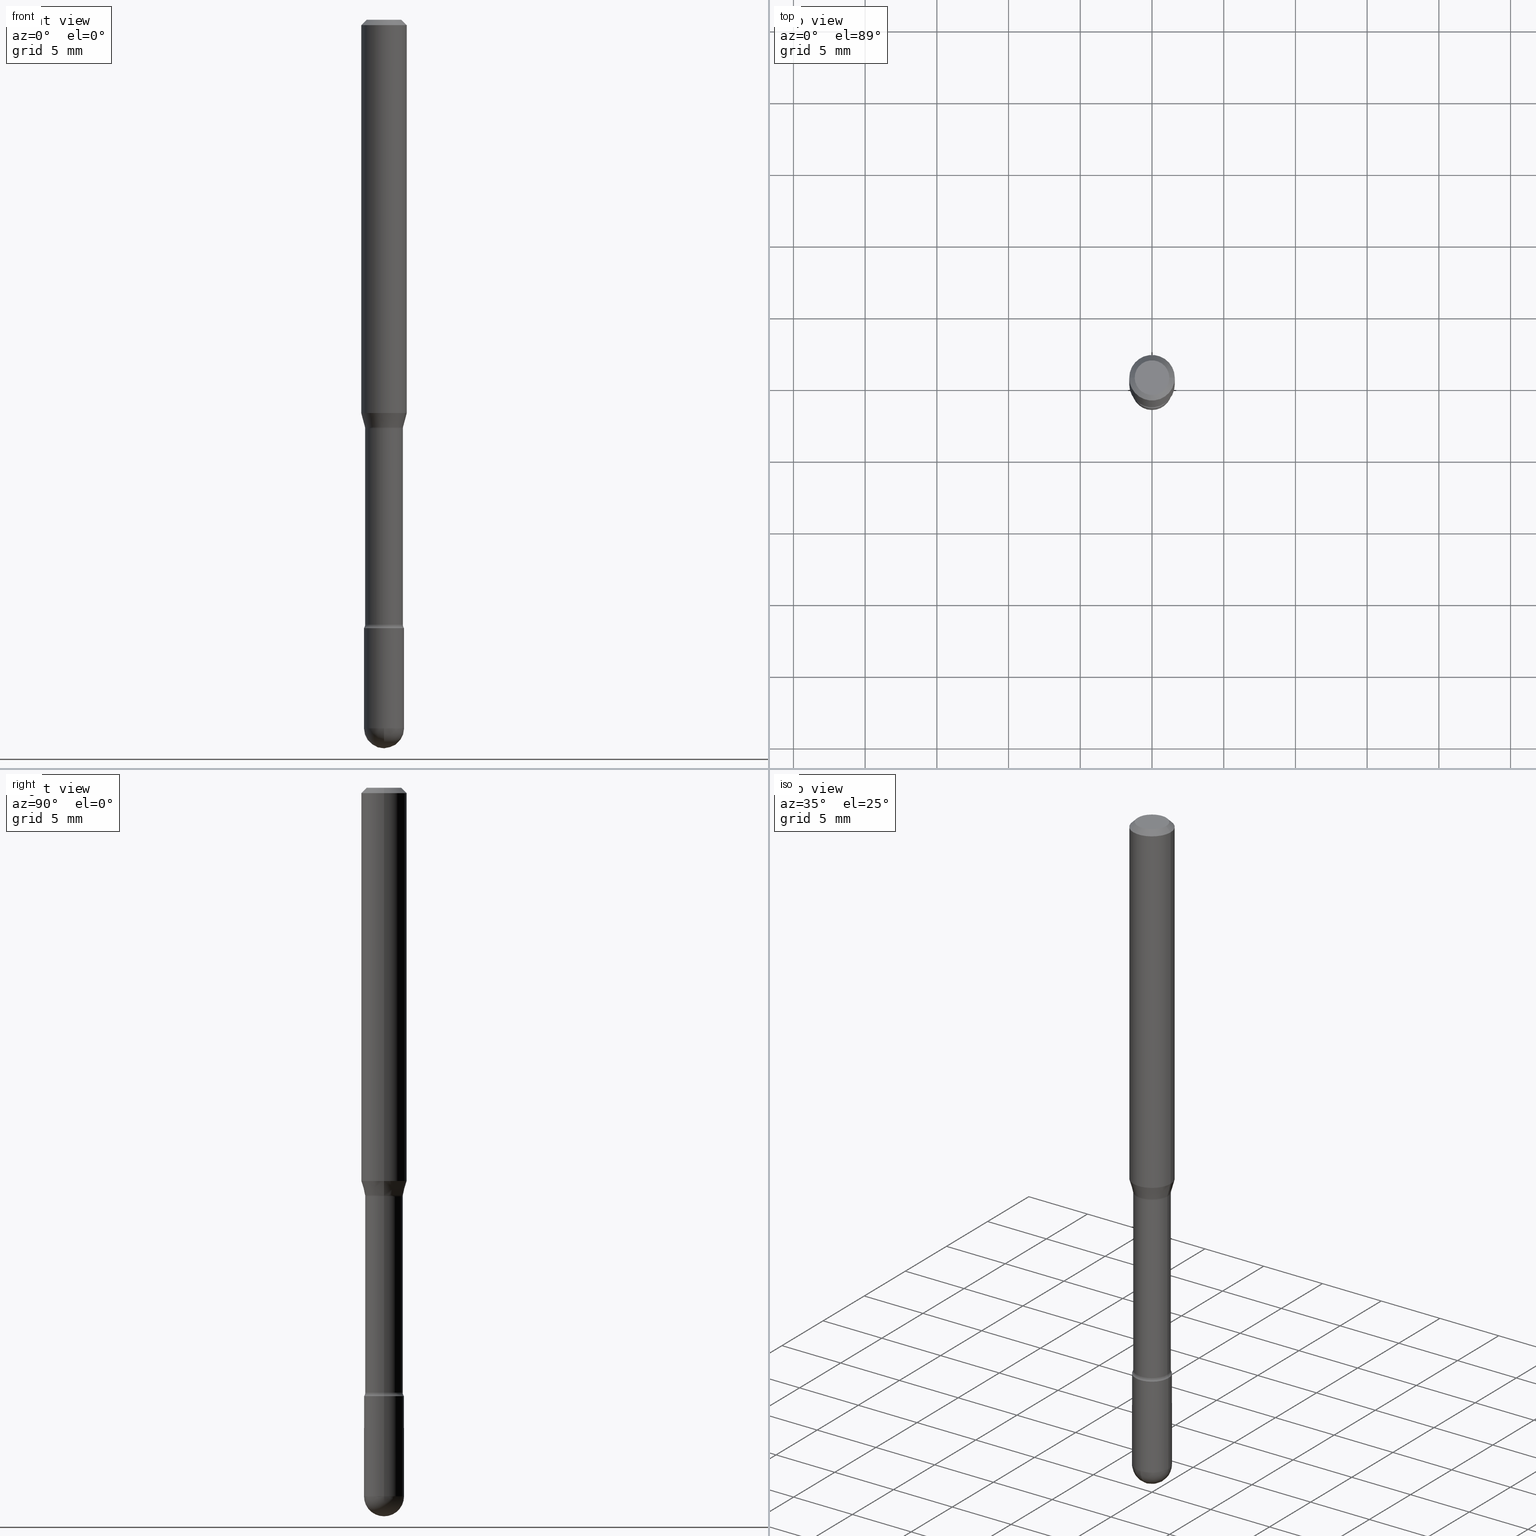
[diagram: canonical four-view strip — front | top / right | iso, engineering-drawing reading convention]
A machine part, canonical four-view strip (front | top / right | iso — engineering-drawing reading convention). The complete STEP part file that produces these views, byte-faithful:
ISO-10303-21;
HEADER;
FILE_DESCRIPTION (( 'STEP AP203' ),
    '1' );
FILE_NAME ('09833.STEP',
    '2024-04-10T02:02:16',
    ( '' ),
    ( '' ),
    'SwSTEP 2.0',
    'SolidWorks 2023',
    '' );
FILE_SCHEMA (( 'CONFIG_CONTROL_DESIGN' ));
ENDSEC;

DATA;
#1 = MANIFOLD_SOLID_BREP ( 'Body-Move/Copy2[1]', #119 ) ;
#2 = MANIFOLD_SOLID_BREP ( 'Body-Move/Copy2[2]', #360 ) ;
#3 = TOROIDAL_SURFACE ( 'NONE', #140, 0.06670000000000005091, 0.01500000000000005322 ) ;
#4 = DIMENSIONAL_EXPONENTS ( 1.000000000000000000, 0.000000000000000000, 0.000000000000000000, 0.000000000000000000, 0.000000000000000000, 0.000000000000000000, 0.000000000000000000 ) ;
#5 = DIRECTION ( 'NONE',  ( 1.000000000000000000, -6.982962677686265922E-15, 0.000000000000000000 ) ) ;
#6 = DIRECTION ( 'NONE',  ( -2.445468806185136597E-29, 3.491481338843145583E-15, 1.000000000000000000 ) ) ;
#7 = CIRCLE ( 'NONE', #215, 0.05500000000000000028 ) ;
#8 = APPLICATION_PROTOCOL_DEFINITION ( 'international standard', 'config_control_design', 1994, #519 ) ;
#9 = LINE ( 'NONE', #323, #458 ) ;
#10 = CARTESIAN_POINT ( 'NONE',  ( 2.743754344068947151E-29, -3.917354033082399546E-15, -1.121974787463810630 ) ) ;
#11 = ORGANIZATION ( 'UNSPECIFIED', 'UNSPECIFIED', '' ) ;
#12 = DIRECTION ( 'NONE',  ( 7.105427357601001859E-15, 1.000000000000000000, -3.491481338843145583E-15 ) ) ;
#13 = PLANE ( 'NONE',  #230 ) ;
#14 = DIRECTION ( 'NONE',  ( -2.445468806185136597E-29, 3.491481338843145583E-15, 1.000000000000000000 ) ) ;
#15 = ORIENTED_EDGE ( 'NONE', *, *, #351, .F. ) ;
#16 = CARTESIAN_POINT ( 'NONE',  ( 0.05500000000000000028, -6.694915467231730455E-15, -1.944999999999999840 ) ) ;
#17 = DIRECTION ( 'NONE',  ( 1.000000000000000000, -6.982962677686262766E-15, 4.883557194083110659E-29 ) ) ;
#18 = EDGE_CURVE ( 'NONE', #528, #514, #317, .T. ) ;
#19 = CARTESIAN_POINT ( 'NONE',  ( -1.169113584055446105E-44, 1.669184350826100908E-30, 4.780733988912460139E-16 ) ) ;
#20 = DIRECTION ( 'NONE',  ( -2.445468806185136877E-29, 3.491481338843145188E-15, 1.000000000000000000 ) ) ;
#21 = AXIS2_PLACEMENT_3D ( 'NONE', #437, #14, #78 ) ;
#22 = LOCAL_TIME ( 22, 2, 16.00000000000000000, #478 ) ;
#23 = EDGE_CURVE ( 'NONE', #528, #347, #155, .T. ) ;
#24 = DIRECTION ( 'NONE',  ( -2.445468806185136597E-29, 3.491481338843145583E-15, 1.000000000000000000 ) ) ;
#25 = DIRECTION ( 'NONE',  ( 0.2588190451025215721, 1.565188264969619995E-15, 0.9659258262890679791 ) ) ;
#26 = EDGE_CURVE ( 'NONE', #555, #72, #46, .T. ) ;
#27 = EDGE_CURVE ( 'NONE', #485, #72, #457, .T. ) ;
#28 = DIRECTION ( 'NONE',  ( -2.445468806185136597E-29, 3.491481338843145583E-15, 1.000000000000000000 ) ) ;
#29 = ORIENTED_EDGE ( 'NONE', *, *, #33, .T. ) ;
#30 = APPROVAL_ROLE ( '' ) ;
#31 = VERTEX_POINT ( 'NONE', #55 ) ;
#32 = FACE_OUTER_BOUND ( 'NONE', #501, .T. ) ;
#33 = EDGE_CURVE ( 'NONE', #448, #314, #158, .T. ) ;
#34 = PERSON_AND_ORGANIZATION ( #275, #11 ) ;
#35 = ADVANCED_FACE ( 'NONE', ( #154 ), #157, .T. ) ;
#36 = CARTESIAN_POINT ( 'NONE',  ( 0.05169999999999999596, -4.278373203518779106E-15, -1.121974787463810630 ) ) ;
#37 = CIRCLE ( 'NONE', #249, 0.05169999999999999596 ) ;
#38 = ORIENTED_EDGE ( 'NONE', *, *, #435, .F. ) ;
#39 = LOCAL_TIME ( 22, 2, 16.00000000000000000, #473 ) ;
#40 = SHAPE_DEFINITION_REPRESENTATION ( #369, #493 ) ;
#41 = ORIENTED_EDGE ( 'NONE', *, *, #236, .T. ) ;
#42 = PERSON_AND_ORGANIZATION_ROLE ( 'design_owner' ) ;
#43 = ORIENTED_EDGE ( 'NONE', *, *, #47, .F. ) ;
#44 = DIRECTION ( 'NONE',  ( 1.000000000000000000, -6.982962677686270655E-15, 0.000000000000000000 ) ) ;
#45 = ORIENTED_EDGE ( 'NONE', *, *, #421, .T. ) ;
#46 = CIRCLE ( 'NONE', #283, 0.01499999999999999424 ) ;
#47 = EDGE_CURVE ( 'NONE', #485, #559, #522, .T. ) ;
#48 = CIRCLE ( 'NONE', #133, 0.05169999999999999596 ) ;
#49 = CARTESIAN_POINT ( 'NONE',  ( -0.06250000000000000000, -3.325641723551655148E-15, -1.079693851278256123 ) ) ;
#50 = ORIENTED_EDGE ( 'NONE', *, *, #96, .T. ) ;
#51 = CC_DESIGN_PERSON_AND_ORGANIZATION_ASSIGNMENT ( #144, #552, ( #419 ) ) ;
#52 = VECTOR ( 'NONE', #187, 39.37007874015748143 ) ;
#53 = AXIS2_PLACEMENT_3D ( 'NONE', #461, #160, #164 ) ;
#54 = DIRECTION ( 'NONE',  ( -2.445468806185136597E-29, 3.491481338843145583E-15, 1.000000000000000000 ) ) ;
#55 = CARTESIAN_POINT ( 'NONE',  ( -0.05221111260566397433, -3.429229280381646610E-15, -1.118092501787272930 ) ) ;
#56 = LINE ( 'NONE', #392, #310 ) ;
#57 = ADVANCED_FACE ( 'NONE', ( #439 ), #556, .T. ) ;
#58 = CARTESIAN_POINT ( 'NONE',  ( 3.668203209277725232E-31, -5.237222008264747365E-17, -0.01500000000000008271 ) ) ;
#59 = DIRECTION ( 'NONE',  ( -2.445468806185136597E-29, 3.491481338843145583E-15, 1.000000000000000000 ) ) ;
#60 = CARTESIAN_POINT ( 'NONE',  ( 2.023552857353652888E-45, -2.889097183224559242E-31, -8.274703207154537794E-17 ) ) ;
#61 = DIRECTION ( 'NONE',  ( 1.000000000000000000, -6.982962677686266711E-15, 4.883557194083113462E-29 ) ) ;
#62 = ORIENTED_EDGE ( 'NONE', *, *, #277, .T. ) ;
#63 = DIRECTION ( 'NONE',  ( -2.445468806185136597E-29, 3.491481338843145583E-15, 1.000000000000000000 ) ) ;
#64 = EDGE_CURVE ( 'NONE', #179, #448, #108, .T. ) ;
#65 = CC_DESIGN_PERSON_AND_ORGANIZATION_ASSIGNMENT ( #95, #332, ( #434 ) ) ;
#66 = UNCERTAINTY_MEASURE_WITH_UNIT (LENGTH_MEASURE( 1.000000000000000082E-05 ), #313, 'distance_accuracy_value', 'NONE');
#67 = CIRCLE ( 'NONE', #243, 0.01500000000000006189 ) ;
#68 = DIRECTION ( 'NONE',  ( 2.438088387897960049E-29, -3.491481338843145188E-15, -1.000000000000000000 ) ) ;
#69 = FACE_OUTER_BOUND ( 'NONE', #456, .T. ) ;
#70 = EDGE_LOOP ( 'NONE', ( #564, #50, #474, #566, #385 ) ) ;
#71 = CC_DESIGN_SECURITY_CLASSIFICATION ( #419, ( #434 ) ) ;
#72 = VERTEX_POINT ( 'NONE', #36 ) ;
#73 = CARTESIAN_POINT ( 'NONE',  ( 4.060978042117791300E-29, -5.798000373443578100E-15, -1.660613307291702645 ) ) ;
#74 = DIRECTION ( 'NONE',  ( 1.000000000000000000, -6.982962677686262766E-15, 4.883557194083110659E-29 ) ) ;
#75 = ORIENTED_EDGE ( 'NONE', *, *, #399, .F. ) ;
#76 = CARTESIAN_POINT ( 'NONE',  ( 2.743754344068947151E-29, -3.917354033082399546E-15, -1.121974787463810630 ) ) ;
#77 = SPHERICAL_SURFACE ( 'NONE', #199, 0.05500000000000004191 ) ;
#78 = DIRECTION ( 'NONE',  ( 1.000000000000000000, -6.982962677686266711E-15, 0.000000000000000000 ) ) ;
#79 = ORIENTED_EDGE ( 'NONE', *, *, #106, .T. ) ;
#80 = CARTESIAN_POINT ( 'NONE',  ( 0.05169999999999999596, -6.159019543879958449E-15, -1.660613307291702645 ) ) ;
#81 = CARTESIAN_POINT ( 'NONE',  ( 4.083932906329177803E-29, -5.830773835868053056E-15, -1.669999999999999929 ) ) ;
#82 = DATE_AND_TIME ( #279, #39 ) ;
#83 = VERTEX_POINT ( 'NONE', #49 ) ;
#84 = ADVANCED_FACE ( 'NONE', ( #409 ), #206, .F. ) ;
#85 = DIRECTION ( 'NONE',  ( -1.000000000000000000, 7.105427357601001070E-15, -4.926315508542082329E-29 ) ) ;
#86 = CARTESIAN_POINT ( 'NONE',  ( 2.743754344068947711E-29, -3.917354033082399546E-15, -1.121974787463810630 ) ) ;
#87 = CARTESIAN_POINT ( 'NONE',  ( -0.05169999999999999596, -5.435312555127801674E-15, -1.660613307291702645 ) ) ;
#88 = DATE_AND_TIME ( #328, #22 ) ;
#89 = CONICAL_SURFACE ( 'NONE', #465, 0.06250000000000000000, 0.7853981633974483900 ) ;
#90 = CONICAL_SURFACE ( 'NONE', #362, 0.05221111260566397433, 0.2617993877991502960 ) ;
#91 = ORIENTED_EDGE ( 'NONE', *, *, #397, .T. ) ;
#92 = APPROVAL_ROLE ( '' ) ;
#93 = ORIENTED_EDGE ( 'NONE', *, *, #165, .F. ) ;
#94 = DIRECTION ( 'NONE',  ( 1.000000000000000000, -6.982962677686262766E-15, 0.000000000000000000 ) ) ;
#95 = PERSON_AND_ORGANIZATION ( #275, #11 ) ;
#96 = EDGE_CURVE ( 'NONE', #398, #182, #469, .T. ) ;
#97 = CARTESIAN_POINT ( 'NONE',  ( 2.734260335550274968E-29, -3.903799105090709748E-15, -1.118092501787272930 ) ) ;
#98 = DIRECTION ( 'NONE',  ( -0.7071067811865475727, 2.468850131082257455E-15, -0.7071067811865474617 ) ) ;
#99 = ORIENTED_EDGE ( 'NONE', *, *, #431, .T. ) ;
#100 = CIRCLE ( 'NONE', #300, 0.05500000000000000028 ) ;
#101 = ORIENTED_EDGE ( 'NONE', *, *, #299, .T. ) ;
#102 = AXIS2_PLACEMENT_3D ( 'NONE', #535, #117, #181 ) ;
#103 = DIRECTION ( 'NONE',  ( 1.000000000000000000, -6.982962677686275388E-15, 0.000000000000000000 ) ) ;
#104 = EDGE_LOOP ( 'NONE', ( #542, #126, #75, #248 ) ) ;
#105 = EDGE_LOOP ( 'NONE', ( #201, #356, #247, #91 ) ) ;
#106 = EDGE_CURVE ( 'NONE', #314, #412, #269, .T. ) ;
#107 = DIRECTION ( 'NONE',  ( 1.000000000000000000, -6.982962677686262766E-15, 0.000000000000000000 ) ) ;
#108 = CIRCLE ( 'NONE', #343, 0.05500000000000004191 ) ;
#109 = CC_DESIGN_APPROVAL ( #497, ( #386 ) ) ;
#110 = DIRECTION ( 'NONE',  ( -2.445468806185136597E-29, 3.491481338843145583E-15, 1.000000000000000000 ) ) ;
#111 = CARTESIAN_POINT ( 'NONE',  ( -0.06250000000000000000, -1.466962366892119806E-15, -0.01500000000000008271 ) ) ;
#112 = DIRECTION ( 'NONE',  ( 2.445468806185136597E-29, -3.491481338843145583E-15, -1.000000000000000000 ) ) ;
#113 = DIRECTION ( 'NONE',  ( -2.445468806185136597E-29, 3.491481338843145583E-15, 1.000000000000000000 ) ) ;
#114 = ADVANCED_FACE ( 'NONE', ( #389 ), #551, .F. ) ;
#115 = DIRECTION ( 'NONE',  ( -2.445468806185136597E-29, 3.491481338843145583E-15, 1.000000000000000000 ) ) ;
#116 = DIRECTION ( 'NONE',  ( -2.445468806185136597E-29, 3.491481338843145583E-15, 1.000000000000000000 ) ) ;
#117 = DIRECTION ( 'NONE',  ( -2.445468806185136597E-29, 3.491481338843145583E-15, 1.000000000000000000 ) ) ;
#118 = EDGE_LOOP ( 'NONE', ( #324, #533, #29, #79, #276 ) ) ;
#119 = CLOSED_SHELL ( 'NONE', ( #57, #503, #454, #35, #407 ) ) ;
#120 = AXIS2_PLACEMENT_3D ( 'NONE', #303, #172, #308 ) ;
#121 = DIRECTION ( 'NONE',  ( -1.000000000000000000, 6.982962677686265922E-15, -4.876176775795935793E-29 ) ) ;
#122 = DIRECTION ( 'NONE',  ( -2.445468806185136597E-29, 3.491481338843145583E-15, 1.000000000000000000 ) ) ;
#123 = DIRECTION ( 'NONE',  ( -2.445468806185136597E-29, 3.491481338843145583E-15, 1.000000000000000000 ) ) ;
#124 = ORIENTED_EDGE ( 'NONE', *, *, #204, .F. ) ;
#125 = ORIENTED_EDGE ( 'NONE', *, *, #236, .F. ) ;
#126 = ORIENTED_EDGE ( 'NONE', *, *, #192, .T. ) ;
#127 = DIRECTION ( 'NONE',  ( 1.000000000000000000, -6.982962677686266711E-15, 4.876176775795935793E-29 ) ) ;
#128 = DIRECTION ( 'NONE',  ( 1.000000000000000000, -6.982962677686275388E-15, 0.000000000000000000 ) ) ;
#129 = DIRECTION ( 'NONE',  ( -1.000000000000000000, 6.982962677686266711E-15, 0.000000000000000000 ) ) ;
#130 = AXIS2_PLACEMENT_3D ( 'NONE', #205, #370, #200 ) ;
#131 = MECHANICAL_CONTEXT ( 'NONE', #519, 'mechanical' ) ;
#132 = EDGE_LOOP ( 'NONE', ( #358, #171 ) ) ;
#133 = AXIS2_PLACEMENT_3D ( 'NONE', #76, #110, #462 ) ;
#134 = LINE ( 'NONE', #141, #52 ) ;
#135 = DATE_AND_TIME ( #451, #193 ) ;
#136 = EDGE_LOOP ( 'NONE', ( #518, #274 ) ) ;
#137 = EDGE_CURVE ( 'NONE', #555, #31, #536, .T. ) ;
#138 = PERSON_AND_ORGANIZATION ( #275, #11 ) ;
#139 = VECTOR ( 'NONE', #463, 39.37007874015748143 ) ;
#140 = AXIS2_PLACEMENT_3D ( 'NONE', #219, #384, #74 ) ;
#141 = CARTESIAN_POINT ( 'NONE',  ( -0.06250000000000000000, 4.440892098500642925E-16, 4.780733988912429571E-16 ) ) ;
#142 = DIRECTION ( 'NONE',  ( 2.445468806185136597E-29, -3.491481338843145583E-15, -1.000000000000000000 ) ) ;
#143 = CARTESIAN_POINT ( 'NONE',  ( 0.06250000000000000000, -4.364351673553899931E-16, 4.780733988912490708E-16 ) ) ;
#144 = PERSON_AND_ORGANIZATION ( #275, #11 ) ;
#145 = EDGE_CURVE ( 'NONE', #31, #555, #494, .T. ) ;
#146 = EDGE_LOOP ( 'NONE', ( #388, #350, #235, #377 ) ) ;
#147 = FACE_OUTER_BOUND ( 'NONE', #286, .T. ) ;
#148 = ORIENTED_EDGE ( 'NONE', *, *, #163, .T. ) ;
#149 = ADVANCED_FACE ( 'NONE', ( #224 ), #353, .T. ) ;
#150 = ADVANCED_FACE ( 'NONE', ( #460 ), #89, .T. ) ;
#151 = ORIENTED_EDGE ( 'NONE', *, *, #23, .T. ) ;
#152 = ORIENTED_EDGE ( 'NONE', *, *, #233, .T. ) ;
#153 = EDGE_LOOP ( 'NONE', ( #15, #327, #151, #41 ) ) ;
#154 = FACE_OUTER_BOUND ( 'NONE', #104, .T. ) ;
#155 = LINE ( 'NONE', #295, #414 ) ;
#156 = DIRECTION ( 'NONE',  ( -2.445468806185136597E-29, 3.491481338843145583E-15, 1.000000000000000000 ) ) ;
#157 = SPHERICAL_SURFACE ( 'NONE', #443, 0.05500000000000004191 ) ;
#158 = CIRCLE ( 'NONE', #380, 0.05500000000000000028 ) ;
#159 = AXIS2_PLACEMENT_3D ( 'NONE', #225, #123, #61 ) ;
#160 = DIRECTION ( 'NONE',  ( -2.445468806185136597E-29, 3.491481338843145583E-15, 1.000000000000000000 ) ) ;
#161 = AXIS2_PLACEMENT_3D ( 'NONE', #266, #383, #464 ) ;
#162 = CARTESIAN_POINT ( 'NONE',  ( 4.756436828030090255E-29, -6.790931204049917095E-15, -1.944999999999999840 ) ) ;
#163 = EDGE_CURVE ( 'NONE', #291, #347, #175, .T. ) ;
#164 = DIRECTION ( 'NONE',  ( 1.000000000000000000, -6.982962677686266711E-15, 4.876176775795935793E-29 ) ) ;
#165 = EDGE_CURVE ( 'NONE', #31, #83, #331, .T. ) ;
#166 = CARTESIAN_POINT ( 'NONE',  ( 4.083932906329177803E-29, -5.830773835868053056E-15, -1.669999999999999929 ) ) ;
#167 = EDGE_LOOP ( 'NONE', ( #186, #544 ) ) ;
#168 = DIRECTION ( 'NONE',  ( -2.445468806185136597E-29, 3.491481338843145583E-15, 1.000000000000000000 ) ) ;
#169 = EDGE_CURVE ( 'NONE', #182, #412, #7, .T. ) ;
#170 = DIRECTION ( 'NONE',  ( -2.445468806185136597E-29, 3.491481338843145583E-15, 1.000000000000000000 ) ) ;
#171 = ORIENTED_EDGE ( 'NONE', *, *, #277, .F. ) ;
#172 = DIRECTION ( 'NONE',  ( -2.445468806185136597E-29, 3.491481338843145583E-15, 1.000000000000000000 ) ) ;
#173 = ADVANCED_FACE ( 'NONE', ( #188 ), #545, .T. ) ;
#174 = DIRECTION ( 'NONE',  ( 1.000000000000000000, -6.982962677686266711E-15, 0.000000000000000000 ) ) ;
#175 = CIRCLE ( 'NONE', #318, 0.06250000000000000000 ) ;
#176 = CARTESIAN_POINT ( 'NONE',  ( -0.05169999999999999596, -4.490326608875016858E-15, -1.121974787463810630 ) ) ;
#177 = AXIS2_PLACEMENT_3D ( 'NONE', #166, #113, #312 ) ;
#178 = FACE_OUTER_BOUND ( 'NONE', #118, .T. ) ;
#179 = VERTEX_POINT ( 'NONE', #361 ) ;
#180 = ADVANCED_FACE ( 'NONE', ( #476 ), #523, .F. ) ;
#181 = DIRECTION ( 'NONE',  ( 1.000000000000000000, -6.982962677686266711E-15, 0.000000000000000000 ) ) ;
#182 = VERTEX_POINT ( 'NONE', #481 ) ;
#183 = DIRECTION ( 'NONE',  ( -2.445468806185136597E-29, 3.491481338843145583E-15, 1.000000000000000000 ) ) ;
#184 = DIRECTION ( 'NONE',  ( -2.445468806185136597E-29, 3.491481338843145583E-15, 1.000000000000000000 ) ) ;
#185 = DIRECTION ( 'NONE',  ( 1.000000000000000000, 0.000000000000000000, 0.000000000000000000 ) ) ;
#186 = ORIENTED_EDGE ( 'NONE', *, *, #18, .T. ) ;
#187 = DIRECTION ( 'NONE',  ( -2.445468806185136877E-29, 3.491481338843145188E-15, 1.000000000000000000 ) ) ;
#188 = FACE_OUTER_BOUND ( 'NONE', #153, .T. ) ;
#189 = CARTESIAN_POINT ( 'NONE',  ( 4.083932906329177803E-29, -5.830773835868053056E-15, -1.669999999999999929 ) ) ;
#190 = AXIS2_PLACEMENT_3D ( 'NONE', #549, #183, #127 ) ;
#191 = ORIENTED_EDGE ( 'NONE', *, *, #342, .T. ) ;
#192 = EDGE_CURVE ( 'NONE', #179, #455, #562, .T. ) ;
#193 = LOCAL_TIME ( 22, 2, 16.00000000000000000, #273 ) ;
#194 = CARTESIAN_POINT ( 'NONE',  ( 4.756436828030090255E-29, -6.790931204049917095E-15, -1.944999999999999840 ) ) ;
#195 = DIRECTION ( 'NONE',  ( 1.000000000000000000, -6.982962677686266711E-15, 0.000000000000000000 ) ) ;
#196 = DIRECTION ( 'NONE',  ( 1.000000000000000000, -6.982962677686262766E-15, 0.000000000000000000 ) ) ;
#197 = CC_DESIGN_PERSON_AND_ORGANIZATION_ASSIGNMENT ( #34, #237, ( #434 ) ) ;
#198 = AXIS2_PLACEMENT_3D ( 'NONE', #58, #54, #467 ) ;
#199 = AXIS2_PLACEMENT_3D ( 'NONE', #162, #541, #500 ) ;
#200 = DIRECTION ( 'NONE',  ( 1.000000000000000000, -6.982962677686267499E-15, 4.884662768193073002E-29 ) ) ;
#201 = ORIENTED_EDGE ( 'NONE', *, *, #534, .F. ) ;
#202 = DIRECTION ( 'NONE',  ( -2.445468806185136597E-29, 3.491481338843145583E-15, 1.000000000000000000 ) ) ;
#203 = CARTESIAN_POINT ( 'NONE',  ( -0.05169999999999999596, 3.673505943879734930E-16, 4.780733988912435487E-16 ) ) ;
#204 = EDGE_CURVE ( 'NONE', #408, #239, #67, .T. ) ;
#205 = CARTESIAN_POINT ( 'NONE',  ( 2.023552857353652888E-45, -2.889097183224559242E-31, -8.274703207154537794E-17 ) ) ;
#206 = TOROIDAL_SURFACE ( 'NONE', #159, 0.06669999999999999540, 0.01499999999999998904 ) ;
#207 = LOCAL_TIME ( 22, 2, 16.00000000000000000, #322 ) ;
#208 = CARTESIAN_POINT ( 'NONE',  ( 0.05169999999999999596, -3.610191704363782779E-16, 4.780733988912485777E-16 ) ) ;
#209 = EDGE_CURVE ( 'NONE', #455, #398, #100, .T. ) ;
#210 = DIRECTION ( 'NONE',  ( -2.438088387897960049E-29, 3.491481338843145188E-15, 1.000000000000000000 ) ) ;
#211 = CARTESIAN_POINT ( 'NONE',  ( -0.05500000000000000028, -5.920054015290930810E-15, -1.944999999999999840 ) ) ;
#212 = CARTESIAN_POINT ( 'NONE',  ( -0.05500000000000004191, -5.439975331199998395E-15, -1.669999999999999929 ) ) ;
#213 = DIRECTION ( 'NONE',  ( 1.000000000000000000, -6.982962677686267499E-15, 4.884662768193073002E-29 ) ) ;
#214 = AXIS2_PLACEMENT_3D ( 'NONE', #511, #122, #425 ) ;
#215 = AXIS2_PLACEMENT_3D ( 'NONE', #81, #231, #196 ) ;
#216 = CIRCLE ( 'NONE', #531, 0.05500000000000000028 ) ;
#217 = DIRECTION ( 'NONE',  ( -2.438088387897960049E-29, 3.491481338843145188E-15, 1.000000000000000000 ) ) ;
#218 = CARTESIAN_POINT ( 'NONE',  ( 0.05221111260566397433, -4.268387355776536144E-15, -1.118092501787272930 ) ) ;
#219 = CARTESIAN_POINT ( 'NONE',  ( 4.060978042117791300E-29, -5.798000373443578100E-15, -1.660613307291702645 ) ) ;
#220 = DIRECTION ( 'NONE',  ( -2.445468806185136597E-29, 3.491481338843145583E-15, 1.000000000000000000 ) ) ;
#221 = FACE_OUTER_BOUND ( 'NONE', #401, .T. ) ;
#222 = ORIENTED_EDGE ( 'NONE', *, *, #534, .T. ) ;
#223 = APPROVAL ( #438, 'UNSPECIFIED' ) ;
#224 = FACE_OUTER_BOUND ( 'NONE', #540, .T. ) ;
#225 = CARTESIAN_POINT ( 'NONE',  ( 2.743754344068947711E-29, -3.917354033082399546E-15, -1.121974787463810630 ) ) ;
#226 = CARTESIAN_POINT ( 'NONE',  ( 0.04749999999999999362, -4.035134999187581581E-16, -8.274703207154280181E-17 ) ) ;
#227 = ORIENTED_EDGE ( 'NONE', *, *, #26, .F. ) ;
#228 = AXIS2_PLACEMENT_3D ( 'NONE', #447, #156, #297 ) ;
#229 = EDGE_LOOP ( 'NONE', ( #101, #287, #442, #280 ) ) ;
#230 = AXIS2_PLACEMENT_3D ( 'NONE', #304, #68, #121 ) ;
#231 = DIRECTION ( 'NONE',  ( -2.445468806185136597E-29, 3.491481338843145583E-15, 1.000000000000000000 ) ) ;
#232 = DIRECTION ( 'NONE',  ( -2.445468806185136877E-29, 3.491481338843145188E-15, 1.000000000000000000 ) ) ;
#233 = EDGE_CURVE ( 'NONE', #553, #72, #48, .T. ) ;
#234 = CARTESIAN_POINT ( 'NONE',  ( -1.169113584055446105E-44, 1.669184350826100908E-30, 4.780733988912460139E-16 ) ) ;
#235 = ORIENTED_EDGE ( 'NONE', *, *, #546, .F. ) ;
#236 = EDGE_CURVE ( 'NONE', #347, #291, #381, .T. ) ;
#237 = PERSON_AND_ORGANIZATION_ROLE ( 'creator' ) ;
#238 = AXIS2_PLACEMENT_3D ( 'NONE', #554, #142, #129 ) ;
#239 = VERTEX_POINT ( 'NONE', #212 ) ;
#240 = DATE_TIME_ROLE ( 'classification_date' ) ;
#241 = ORIENTED_EDGE ( 'NONE', *, *, #302, .T. ) ;
#242 = APPROVAL_STATUS ( 'not_yet_approved' ) ;
#243 = AXIS2_PLACEMENT_3D ( 'NONE', #305, #12, #253 ) ;
#244 = DIRECTION ( 'NONE',  ( -2.445468806185136877E-29, 3.491481338843145188E-15, 1.000000000000000000 ) ) ;
#245 = ADVANCED_FACE ( 'NONE', ( #424 ), #502, .T. ) ;
#246 = DIRECTION ( 'NONE',  ( -1.000000000000000000, 6.982962677686266711E-15, 0.000000000000000000 ) ) ;
#247 = ORIENTED_EDGE ( 'NONE', *, *, #26, .T. ) ;
#248 = ORIENTED_EDGE ( 'NONE', *, *, #33, .F. ) ;
#249 = AXIS2_PLACEMENT_3D ( 'NONE', #550, #184, #128 ) ;
#250 = DIRECTION ( 'NONE',  ( 6.982962677686266711E-15, 1.000000000000000000, -4.966996352116838343E-15 ) ) ;
#251 = ORIENTED_EDGE ( 'NONE', *, *, #145, .T. ) ;
#252 = CC_DESIGN_PERSON_AND_ORGANIZATION_ASSIGNMENT ( #138, #42, ( #526 ) ) ;
#253 = DIRECTION ( 'NONE',  ( -1.000000000000000000, 7.105427357601027102E-15, 0.000000000000000000 ) ) ;
#254 = DIRECTION ( 'NONE',  ( -1.000000000000000000, 6.982962677686266711E-15, -4.883557194083112901E-29 ) ) ;
#255 = CARTESIAN_POINT ( 'NONE',  ( 0.06250000000000000000, -4.206166100757109434E-15, -1.079693851278256123 ) ) ;
#256 = ORIENTED_EDGE ( 'NONE', *, *, #262, .F. ) ;
#257 = DIRECTION ( 'NONE',  ( 1.000000000000000000, -6.982962677686266711E-15, 4.927827573631271447E-29 ) ) ;
#258 = VECTOR ( 'NONE', #278, 39.37007874015748143 ) ;
#259 = CC_DESIGN_APPROVAL ( #529, ( #434 ) ) ;
#260 = CARTESIAN_POINT ( 'NONE',  ( 4.756436828030090255E-29, -6.790931204049917095E-15, -1.944999999999999840 ) ) ;
#261 = DIRECTION ( 'NONE',  ( 0.7071067811865475727, -7.319954787623256045E-15, -0.7071067811865474617 ) ) ;
#262 = EDGE_CURVE ( 'NONE', #83, #347, #134, .T. ) ;
#263 = DIRECTION ( 'NONE',  ( -2.445468806185136597E-29, 3.491481338843145583E-15, 1.000000000000000000 ) ) ;
#264 = ORIENTED_EDGE ( 'NONE', *, *, #338, .T. ) ;
#265 = CARTESIAN_POINT ( 'NONE',  ( -0.05500000000000000028, 3.907985046680551042E-16, -2.705414299640198362E-30 ) ) ;
#266 = CARTESIAN_POINT ( 'NONE',  ( -0.06669999999999999540, -3.443422028330412853E-15, -1.121974787463810630 ) ) ;
#267 = ORIENTED_EDGE ( 'NONE', *, *, #165, .T. ) ;
#268 = DIRECTION ( 'NONE',  ( 1.000000000000000000, -6.982962677686262766E-15, 0.000000000000000000 ) ) ;
#269 = LINE ( 'NONE', #436, #335 ) ;
#270 = VECTOR ( 'NONE', #244, 39.37007874015748143 ) ;
#271 =( GEOMETRIC_REPRESENTATION_CONTEXT ( 3 ) GLOBAL_UNCERTAINTY_ASSIGNED_CONTEXT ( ( #66 ) ) GLOBAL_UNIT_ASSIGNED_CONTEXT ( ( #313, #349, #505 ) ) REPRESENTATION_CONTEXT ( 'NONE', 'WORKASPACE' ) );
#272 = DIRECTION ( 'NONE',  ( 1.000000000000000000, -6.982962677686265922E-15, 4.876176775795935793E-29 ) ) ;
#273 = COORDINATED_UNIVERSAL_TIME_OFFSET ( 5, 0, .BEHIND. ) ;
#274 = ORIENTED_EDGE ( 'NONE', *, *, #169, .T. ) ;
#275 = PERSON ( 'UNSPECIFIED', 'UNSPECIFIED', 'UNSPECIFIED', ('UNSPECIFIED'), ('UNSPECIFIED'), ('UNSPECIFIED') ) ;
#276 = ORIENTED_EDGE ( 'NONE', *, *, #169, .F. ) ;
#277 = EDGE_CURVE ( 'NONE', #239, #559, #423, .T. ) ;
#278 = DIRECTION ( 'NONE',  ( -0.2588190451025215721, 5.211531920934551831E-15, 0.9659258262890679791 ) ) ;
#279 = CALENDAR_DATE ( 2024, 9, 4 ) ;
#280 = ORIENTED_EDGE ( 'NONE', *, *, #27, .F. ) ;
#281 = DIRECTION ( 'NONE',  ( -7.105427357601001070E-15, -1.000000000000000000, 0.000000000000000000 ) ) ;
#282 = DIRECTION ( 'NONE',  ( 1.000000000000000000, -6.982962677686266711E-15, 4.883557194083113462E-29 ) ) ;
#283 = AXIS2_PLACEMENT_3D ( 'NONE', #296, #496, #44 ) ;
#284 = DATE_TIME_ROLE ( 'creation_date' ) ;
#285 = AXIS2_PLACEMENT_3D ( 'NONE', #60, #6, #213 ) ;
#286 = EDGE_LOOP ( 'NONE', ( #404, #267, #376, #387 ) ) ;
#287 = ORIENTED_EDGE ( 'NONE', *, *, #435, .T. ) ;
#288 = APPROVAL_DATE_TIME ( #135, #497 ) ;
#289 = CARTESIAN_POINT ( 'NONE',  ( 0.06250000000000000000, -4.888073874380391431E-16, -0.01500000000000008271 ) ) ;
#290 = ORIENTED_EDGE ( 'NONE', *, *, #396, .T. ) ;
#291 = VERTEX_POINT ( 'NONE', #289 ) ;
#292 = CIRCLE ( 'NONE', #177, 0.05500000000000000028 ) ;
#293 = AXIS2_PLACEMENT_3D ( 'NONE', #441, #411, #185 ) ;
#294 = DIRECTION ( 'NONE',  ( 6.982962677686267499E-15, 1.000000000000000000, 0.000000000000000000 ) ) ;
#295 = CARTESIAN_POINT ( 'NONE',  ( -0.06250000000000000000, 3.840629472727441958E-16, -0.01500000000000008271 ) ) ;
#296 = CARTESIAN_POINT ( 'NONE',  ( 0.06669999999999999540, -4.383117643684073264E-15, -1.121974787463810630 ) ) ;
#297 = DIRECTION ( 'NONE',  ( 1.000000000000000000, -6.982962677686262766E-15, 0.000000000000000000 ) ) ;
#298 = FACE_OUTER_BOUND ( 'NONE', #136, .T. ) ;
#299 = EDGE_CURVE ( 'NONE', #485, #408, #37, .T. ) ;
#300 = AXIS2_PLACEMENT_3D ( 'NONE', #344, #115, #107 ) ;
#301 = CARTESIAN_POINT ( 'NONE',  ( 4.756436828030090255E-29, -6.790931204049917095E-15, -1.944999999999999840 ) ) ;
#302 = EDGE_CURVE ( 'NONE', #521, #83, #329, .T. ) ;
#303 = CARTESIAN_POINT ( 'NONE',  ( 4.756436828030090255E-29, -6.790931204049917095E-15, -1.944999999999999840 ) ) ;
#304 = CARTESIAN_POINT ( 'NONE',  ( 3.316907271900976096E-16, 0.04749999999999999362, 3.181781981480094004E-17 ) ) ;
#305 = CARTESIAN_POINT ( 'NONE',  ( -0.06670000000000005091, -5.324068368691591408E-15, -1.660613307291702645 ) ) ;
#306 = PLANE ( 'NONE',  #487 ) ;
#307 = FACE_OUTER_BOUND ( 'NONE', #146, .T. ) ;
#308 = DIRECTION ( 'NONE',  ( 1.000000000000000000, -6.982962677686262766E-15, 0.000000000000000000 ) ) ;
#309 = ORIENTED_EDGE ( 'NONE', *, *, #145, .F. ) ;
#310 = VECTOR ( 'NONE', #261, 39.37007874015748143 ) ;
#311 = APPROVAL_PERSON_ORGANIZATION ( #364, #529, #446 ) ;
#312 = DIRECTION ( 'NONE',  ( 1.000000000000000000, -6.982962677686262766E-15, 0.000000000000000000 ) ) ;
#313 =( CONVERSION_BASED_UNIT ( 'INCH', #427 ) LENGTH_UNIT ( ) NAMED_UNIT ( #4 ) );
#314 = VERTEX_POINT ( 'NONE', #16 ) ;
#315 = ORIENTED_EDGE ( 'NONE', *, *, #47, .T. ) ;
#316 = ORIENTED_EDGE ( 'NONE', *, *, #23, .F. ) ;
#317 = CIRCLE ( 'NONE', #130, 0.04749999999999999362 ) ;
#318 = AXIS2_PLACEMENT_3D ( 'NONE', #433, #410, #195 ) ;
#319 = APPROVAL_STATUS ( 'not_yet_approved' ) ;
#320 = EDGE_LOOP ( 'NONE', ( #309, #222, #152, #227 ) ) ;
#321 = CARTESIAN_POINT ( 'NONE',  ( -1.169113584055446105E-44, 1.669184350826100908E-30, 4.780733988912460139E-16 ) ) ;
#322 = COORDINATED_UNIVERSAL_TIME_OFFSET ( 5, 0, .BEHIND. ) ;
#323 = CARTESIAN_POINT ( 'NONE',  ( 0.05221111260566397433, -4.268387355776536144E-15, -1.118092501787272930 ) ) ;
#324 = ORIENTED_EDGE ( 'NONE', *, *, #96, .F. ) ;
#325 = PRODUCT_RELATED_PRODUCT_CATEGORY ( 'detail', '', ( #526 ) ) ;
#326 = PERSON_AND_ORGANIZATION ( #275, #11 ) ;
#327 = ORIENTED_EDGE ( 'NONE', *, *, #18, .F. ) ;
#328 = CALENDAR_DATE ( 2024, 9, 4 ) ;
#329 = CIRCLE ( 'NONE', #402, 0.06250000000000000000 ) ;
#330 = CARTESIAN_POINT ( 'NONE',  ( 4.083932906329177803E-29, -5.830773835868053056E-15, -1.669999999999999929 ) ) ;
#331 = LINE ( 'NONE', #365, #258 ) ;
#332 = PERSON_AND_ORGANIZATION_ROLE ( 'design_supplier' ) ;
#333 = ORIENTED_EDGE ( 'NONE', *, *, #262, .T. ) ;
#334 = ORIENTED_EDGE ( 'NONE', *, *, #299, .F. ) ;
#335 = VECTOR ( 'NONE', #232, 39.37007874015748143 ) ;
#336 = AXIS2_PLACEMENT_3D ( 'NONE', #417, #375, #103 ) ;
#337 = EDGE_LOOP ( 'NONE', ( #241, #333, #341, #340 ) ) ;
#338 = EDGE_CURVE ( 'NONE', #83, #521, #530, .T. ) ;
#339 = DIRECTION ( 'NONE',  ( 1.000000000000000000, -6.982962677686266711E-15, 4.852736867747366207E-29 ) ) ;
#340 = ORIENTED_EDGE ( 'NONE', *, *, #421, .F. ) ;
#341 = ORIENTED_EDGE ( 'NONE', *, *, #163, .F. ) ;
#342 = EDGE_CURVE ( 'NONE', #559, #239, #444, .T. ) ;
#343 = AXIS2_PLACEMENT_3D ( 'NONE', #194, #85, #281 ) ;
#344 = CARTESIAN_POINT ( 'NONE',  ( 4.756436828030090255E-29, -6.790931204049917095E-15, -1.944999999999999840 ) ) ;
#345 = CIRCLE ( 'NONE', #161, 0.01499999999999999424 ) ;
#346 = DIRECTION ( 'NONE',  ( 1.000000000000000000, -6.982962677686266711E-15, 4.852736867747366207E-29 ) ) ;
#347 = VERTEX_POINT ( 'NONE', #111 ) ;
#348 = EDGE_CURVE ( 'NONE', #514, #528, #394, .T. ) ;
#349 =( NAMED_UNIT ( * ) PLANE_ANGLE_UNIT ( ) SI_UNIT ( $, .RADIAN. ) );
#350 = ORIENTED_EDGE ( 'NONE', *, *, #64, .T. ) ;
#351 = EDGE_CURVE ( 'NONE', #514, #291, #56, .T. ) ;
#352 = FACE_OUTER_BOUND ( 'NONE', #167, .T. ) ;
#353 = CYLINDRICAL_SURFACE ( 'NONE', #472, 0.06250000000000000000 ) ;
#354 = AXIS2_PLACEMENT_3D ( 'NONE', #459, #513, #363 ) ;
#355 = CARTESIAN_POINT ( 'NONE',  ( 0.05500000000000004191, -6.214836783140797252E-15, -1.669999999999999929 ) ) ;
#356 = ORIENTED_EDGE ( 'NONE', *, *, #137, .F. ) ;
#357 = CYLINDRICAL_SURFACE ( 'NONE', #53, 0.05500000000000000028 ) ;
#358 = ORIENTED_EDGE ( 'NONE', *, *, #342, .F. ) ;
#359 = SECURITY_CLASSIFICATION_LEVEL ( 'unclassified' ) ;
#360 = CLOSED_SHELL ( 'NONE', ( #84, #245, #374, #150, #507, #440, #480, #149, #173, #515, #114, #520, #477, #180 ) ) ;
#361 = CARTESIAN_POINT ( 'NONE',  ( 4.893289319665516092E-29, -6.979594898988634750E-15, -2.000000000000000000 ) ) ;
#362 = AXIS2_PLACEMENT_3D ( 'NONE', #97, #168, #174 ) ;
#363 = DIRECTION ( 'NONE',  ( 1.000000000000000000, -6.982962677686239100E-15, 0.000000000000000000 ) ) ;
#364 = PERSON_AND_ORGANIZATION ( #275, #11 ) ;
#365 = CARTESIAN_POINT ( 'NONE',  ( -0.05221111260566397433, -3.532816837211638465E-15, -1.118092501787272930 ) ) ;
#366 = APPROVAL_DATE_TIME ( #403, #529 ) ;
#367 = AXIS2_PLACEMENT_3D ( 'NONE', #10, #220, #5 ) ;
#368 = CARTESIAN_POINT ( 'NONE',  ( 2.640357633530869314E-29, -3.769730933401716976E-15, -1.079693851278256123 ) ) ;
#369 = PRODUCT_DEFINITION_SHAPE ( 'NONE', 'NONE',  #386 ) ;
#370 = DIRECTION ( 'NONE',  ( -2.445468806185136597E-29, 3.491481338843145583E-15, 1.000000000000000000 ) ) ;
#371 = DIRECTION ( 'NONE',  ( -2.445468806185136877E-29, 3.491481338843145188E-15, 1.000000000000000000 ) ) ;
#372 = CIRCLE ( 'NONE', #367, 0.05169999999999999596 ) ;
#373 = APPROVAL_PERSON_ORGANIZATION ( #406, #223, #30 ) ;
#374 = ADVANCED_FACE ( 'NONE', ( #69 ), #3, .F. ) ;
#375 = DIRECTION ( 'NONE',  ( -2.445468806185136597E-29, 3.491481338843145583E-15, 1.000000000000000000 ) ) ;
#376 = ORIENTED_EDGE ( 'NONE', *, *, #302, .F. ) ;
#377 = ORIENTED_EDGE ( 'NONE', *, *, #209, .F. ) ;
#378 = ORIENTED_EDGE ( 'NONE', *, *, #348, .F. ) ;
#379 = CARTESIAN_POINT ( 'NONE',  ( 3.668203209277725232E-31, -5.237222008264747365E-17, -0.01500000000000008271 ) ) ;
#380 = AXIS2_PLACEMENT_3D ( 'NONE', #301, #59, #420 ) ;
#381 = CIRCLE ( 'NONE', #198, 0.06250000000000000000 ) ;
#382 = APPROVAL_PERSON_ORGANIZATION ( #326, #497, #92 ) ;
#383 = DIRECTION ( 'NONE',  ( 7.105427357601001859E-15, 1.000000000000000000, -3.491481338843145583E-15 ) ) ;
#384 = DIRECTION ( 'NONE',  ( -2.445468806185136597E-29, 3.491481338843145583E-15, 1.000000000000000000 ) ) ;
#385 = ORIENTED_EDGE ( 'NONE', *, *, #399, .T. ) ;
#386 = PRODUCT_DEFINITION ( 'UNKNOWN', '', #434, #547 ) ;
#387 = ORIENTED_EDGE ( 'NONE', *, *, #396, .F. ) ;
#388 = ORIENTED_EDGE ( 'NONE', *, *, #192, .F. ) ;
#389 = FACE_OUTER_BOUND ( 'NONE', #132, .T. ) ;
#390 =( LENGTH_UNIT ( ) NAMED_UNIT ( * ) SI_UNIT ( $, .METRE. ) );
#391 = CYLINDRICAL_SURFACE ( 'NONE', #395, 0.05169999999999999596 ) ;
#392 = CARTESIAN_POINT ( 'NONE',  ( 0.06250000000000000000, -4.811533449433681963E-16, -0.01500000000000008271 ) ) ;
#393 = DIRECTION ( 'NONE',  ( -2.445468806185136597E-29, 3.491481338843145583E-15, 1.000000000000000000 ) ) ;
#394 = CIRCLE ( 'NONE', #285, 0.04749999999999999362 ) ;
#395 = AXIS2_PLACEMENT_3D ( 'NONE', #234, #24, #539 ) ;
#396 = EDGE_CURVE ( 'NONE', #555, #521, #9, .T. ) ;
#397 = EDGE_CURVE ( 'NONE', #72, #553, #372, .T. ) ;
#398 = VERTEX_POINT ( 'NONE', #211 ) ;
#399 = EDGE_CURVE ( 'NONE', #314, #455, #516, .T. ) ;
#400 = CALENDAR_DATE ( 2024, 9, 4 ) ;
#401 = EDGE_LOOP ( 'NONE', ( #124, #334, #315, #191 ) ) ;
#402 = AXIS2_PLACEMENT_3D ( 'NONE', #368, #202, #268 ) ;
#403 = DATE_AND_TIME ( #525, #207 ) ;
#404 = ORIENTED_EDGE ( 'NONE', *, *, #137, .T. ) ;
#405 = ORIENTED_EDGE ( 'NONE', *, *, #351, .T. ) ;
#406 = PERSON_AND_ORGANIZATION ( #275, #11 ) ;
#407 = ADVANCED_FACE ( 'NONE', ( #178 ), #357, .T. ) ;
#408 = VERTEX_POINT ( 'NONE', #87 ) ;
#409 = FACE_OUTER_BOUND ( 'NONE', #320, .T. ) ;
#410 = DIRECTION ( 'NONE',  ( -2.445468806185136597E-29, 3.491481338843145583E-15, 1.000000000000000000 ) ) ;
#411 = DIRECTION ( 'NONE',  ( 0.000000000000000000, 0.000000000000000000, 1.000000000000000000 ) ) ;
#412 = VERTEX_POINT ( 'NONE', #524 ) ;
#413 = CC_DESIGN_PERSON_AND_ORGANIZATION_ASSIGNMENT ( #482, #560, ( #386 ) ) ;
#414 = VECTOR ( 'NONE', #98, 39.37007874015748143 ) ;
#415 = VECTOR ( 'NONE', #20, 39.37007874015748143 ) ;
#416 = ORIENTED_EDGE ( 'NONE', *, *, #204, .T. ) ;
#417 = CARTESIAN_POINT ( 'NONE',  ( 4.060978042117791300E-29, -5.798000373443578100E-15, -1.660613307291702645 ) ) ;
#418 = AXIS2_PLACEMENT_3D ( 'NONE', #504, #116, #428 ) ;
#419 = SECURITY_CLASSIFICATION ( '', '', #359 ) ;
#420 = DIRECTION ( 'NONE',  ( 1.000000000000000000, -6.982962677686262766E-15, 0.000000000000000000 ) ) ;
#421 = EDGE_CURVE ( 'NONE', #521, #291, #449, .T. ) ;
#422 = CARTESIAN_POINT ( 'NONE',  ( 3.840629472727855124E-16, 0.05499999999999417161, -1.670000000000000151 ) ) ;
#423 = CIRCLE ( 'NONE', #517, 0.05500000000000000028 ) ;
#424 = FACE_OUTER_BOUND ( 'NONE', #229, .T. ) ;
#425 = DIRECTION ( 'NONE',  ( 1.000000000000000000, -6.982962677686262766E-15, 0.000000000000000000 ) ) ;
#426 = CARTESIAN_POINT ( 'NONE',  ( -3.907985046680076246E-16, -0.05500000000000680733, -1.944999999999999618 ) ) ;
#427 = LENGTH_MEASURE_WITH_UNIT ( LENGTH_MEASURE( 0.02539999999999999897 ), #390 );
#428 = DIRECTION ( 'NONE',  ( 1.000000000000000000, -6.982962677686266711E-15, 0.000000000000000000 ) ) ;
#429 = CARTESIAN_POINT ( 'NONE',  ( -0.04749999999999999362, 3.578768372314208041E-16, -8.274703207154778150E-17 ) ) ;
#430 = CARTESIAN_POINT ( 'NONE',  ( 3.840629472727923656E-16, 0.05499999999999323486, -1.945000000000000062 ) ) ;
#431 = EDGE_CURVE ( 'NONE', #408, #485, #445, .T. ) ;
#432 = AXIS2_PLACEMENT_3D ( 'NONE', #86, #28, #282 ) ;
#433 = CARTESIAN_POINT ( 'NONE',  ( 3.668203209277725232E-31, -5.237222008264747365E-17, -0.01500000000000008271 ) ) ;
#434 = PRODUCT_DEFINITION_FORMATION_WITH_SPECIFIED_SOURCE ( 'ANY', '', #526, .NOT_KNOWN. ) ;
#435 = EDGE_CURVE ( 'NONE', #408, #553, #491, .T. ) ;
#436 = CARTESIAN_POINT ( 'NONE',  ( 0.05500000000000000028, -3.840629472727446888E-16, 2.681897226687764826E-30 ) ) ;
#437 = CARTESIAN_POINT ( 'NONE',  ( 2.734260335550274968E-29, -3.903799105090709748E-15, -1.118092501787272930 ) ) ;
#438 = APPROVAL_STATUS ( 'not_yet_approved' ) ;
#439 = FACE_OUTER_BOUND ( 'NONE', #70, .T. ) ;
#440 = ADVANCED_FACE ( 'NONE', ( #147 ), #90, .T. ) ;
#441 = CARTESIAN_POINT ( 'NONE',  ( 0.000000000000000000, 0.000000000000000000, 0.000000000000000000 ) ) ;
#442 = ORIENTED_EDGE ( 'NONE', *, *, #397, .F. ) ;
#443 = AXIS2_PLACEMENT_3D ( 'NONE', #495, #254, #250 ) ;
#444 = CIRCLE ( 'NONE', #228, 0.05500000000000000028 ) ;
#445 = CIRCLE ( 'NONE', #336, 0.05169999999999999596 ) ;
#446 = APPROVAL_ROLE ( '' ) ;
#447 = CARTESIAN_POINT ( 'NONE',  ( 4.083932906329177803E-29, -5.830773835868053056E-15, -1.669999999999999929 ) ) ;
#448 = VERTEX_POINT ( 'NONE', #426 ) ;
#449 = LINE ( 'NONE', #143, #270 ) ;
#450 = COORDINATED_UNIVERSAL_TIME_OFFSET ( 5, 0, .BEHIND. ) ;
#451 = CALENDAR_DATE ( 2024, 9, 4 ) ;
#452 = AXIS2_PLACEMENT_3D ( 'NONE', #19, #63, #257 ) ;
#453 = AXIS2_PLACEMENT_3D ( 'NONE', #73, #263, #17 ) ;
#454 = ADVANCED_FACE ( 'NONE', ( #298 ), #306, .T. ) ;
#455 = VERTEX_POINT ( 'NONE', #430 ) ;
#456 = EDGE_LOOP ( 'NONE', ( #506, #416, #62, #43 ) ) ;
#457 = LINE ( 'NONE', #208, #139 ) ;
#458 = VECTOR ( 'NONE', #25, 39.37007874015748143 ) ;
#459 = CARTESIAN_POINT ( 'NONE',  ( 0.06670000000000005091, -6.263763984045252607E-15, -1.660613307291702645 ) ) ;
#460 = FACE_OUTER_BOUND ( 'NONE', #492, .T. ) ;
#461 = CARTESIAN_POINT ( 'NONE',  ( 0.000000000000000000, 0.000000000000000000, 0.000000000000000000 ) ) ;
#462 = DIRECTION ( 'NONE',  ( 1.000000000000000000, -6.982962677686265922E-15, 0.000000000000000000 ) ) ;
#463 = DIRECTION ( 'NONE',  ( -2.445468806185136877E-29, 3.491481338843145188E-15, 1.000000000000000000 ) ) ;
#464 = DIRECTION ( 'NONE',  ( -1.000000000000000000, 7.105427357600993970E-15, 0.000000000000000000 ) ) ;
#465 = AXIS2_PLACEMENT_3D ( 'NONE', #379, #112, #246 ) ;
#466 = TOROIDAL_SURFACE ( 'NONE', #453, 0.06670000000000005091, 0.01500000000000005322 ) ;
#467 = DIRECTION ( 'NONE',  ( 1.000000000000000000, -6.982962677686266711E-15, 0.000000000000000000 ) ) ;
#468 = FACE_OUTER_BOUND ( 'NONE', #337, .T. ) ;
#469 = LINE ( 'NONE', #265, #415 ) ;
#470 = CARTESIAN_POINT ( 'NONE',  ( -1.169113584055446105E-44, 1.669184350826100908E-30, 4.780733988912460139E-16 ) ) ;
#471 = DIRECTION ( 'NONE',  ( 1.000000000000000000, -6.982962677686262766E-15, 0.000000000000000000 ) ) ;
#472 = AXIS2_PLACEMENT_3D ( 'NONE', #321, #393, #339 ) ;
#473 = COORDINATED_UNIVERSAL_TIME_OFFSET ( 5, 0, .BEHIND. ) ;
#474 = ORIENTED_EDGE ( 'NONE', *, *, #499, .F. ) ;
#475 = CC_DESIGN_DATE_AND_TIME_ASSIGNMENT ( #82, #240, ( #419 ) ) ;
#476 = FACE_OUTER_BOUND ( 'NONE', #105, .T. ) ;
#477 = ADVANCED_FACE ( 'NONE', ( #32 ), #391, .T. ) ;
#478 = COORDINATED_UNIVERSAL_TIME_OFFSET ( 5, 0, .BEHIND. ) ;
#479 = EDGE_LOOP ( 'NONE', ( #93, #251, #290, #483 ) ) ;
#480 = ADVANCED_FACE ( 'NONE', ( #548 ), #498, .T. ) ;
#481 = CARTESIAN_POINT ( 'NONE',  ( -0.05500000000000000028, -5.920054015290930021E-15, -1.669999999999999929 ) ) ;
#482 = PERSON_AND_ORGANIZATION ( #275, #11 ) ;
#483 = ORIENTED_EDGE ( 'NONE', *, *, #338, .F. ) ;
#484 = APPLICATION_CONTEXT ( 'configuration controlled 3d designs of mechanical parts and assemblies' ) ;
#485 = VERTEX_POINT ( 'NONE', #80 ) ;
#486 = AXIS2_PLACEMENT_3D ( 'NONE', #527, #532, #294 ) ;
#487 = AXIS2_PLACEMENT_3D ( 'NONE', #189, #210, #272 ) ;
#488 = APPLICATION_PROTOCOL_DEFINITION ( 'international standard', 'config_control_design', 1994, #484 ) ;
#489 = DIRECTION ( 'NONE',  ( -2.445468806185136597E-29, 3.491481338843145583E-15, 1.000000000000000000 ) ) ;
#490 = DATE_AND_TIME ( #400, #563 ) ;
#491 = LINE ( 'NONE', #203, #537 ) ;
#492 = EDGE_LOOP ( 'NONE', ( #378, #405, #148, #316 ) ) ;
#493 = ADVANCED_BREP_SHAPE_REPRESENTATION ( '09833', ( #1, #2, #293 ), #271 ) ;
#494 = CIRCLE ( 'NONE', #21, 0.05221111260566397433 ) ;
#495 = CARTESIAN_POINT ( 'NONE',  ( 4.756436828030090255E-29, -6.790931204049917095E-15, -1.944999999999999840 ) ) ;
#496 = DIRECTION ( 'NONE',  ( -6.982962677686266711E-15, -1.000000000000000000, 3.491481338843145583E-15 ) ) ;
#497 = APPROVAL ( #242, 'UNSPECIFIED' ) ;
#498 = CONICAL_SURFACE ( 'NONE', #102, 0.05221111260566397433, 0.2617993877991502960 ) ;
#499 = EDGE_CURVE ( 'NONE', #412, #182, #292, .T. ) ;
#500 = DIRECTION ( 'NONE',  ( 6.982962677686266711E-15, 1.000000000000000000, -4.966996352116838343E-15 ) ) ;
#501 = EDGE_LOOP ( 'NONE', ( #38, #99, #512, #561 ) ) ;
#502 = CYLINDRICAL_SURFACE ( 'NONE', #452, 0.05169999999999999596 ) ;
#503 = ADVANCED_FACE ( 'NONE', ( #307 ), #77, .T. ) ;
#504 = CARTESIAN_POINT ( 'NONE',  ( 2.734260335550274968E-29, -3.903799105090709748E-15, -1.118092501787272930 ) ) ;
#505 =( NAMED_UNIT ( * ) SI_UNIT ( $, .STERADIAN. ) SOLID_ANGLE_UNIT ( ) );
#506 = ORIENTED_EDGE ( 'NONE', *, *, #431, .F. ) ;
#507 = ADVANCED_FACE ( 'NONE', ( #468 ), #508, .T. ) ;
#508 = CYLINDRICAL_SURFACE ( 'NONE', #510, 0.06250000000000000000 ) ;
#509 = AXIS2_PLACEMENT_3D ( 'NONE', #422, #217, #538 ) ;
#510 = AXIS2_PLACEMENT_3D ( 'NONE', #470, #170, #346 ) ;
#511 = CARTESIAN_POINT ( 'NONE',  ( 2.640357633530869314E-29, -3.769730933401716976E-15, -1.079693851278256123 ) ) ;
#512 = ORIENTED_EDGE ( 'NONE', *, *, #27, .T. ) ;
#513 = DIRECTION ( 'NONE',  ( -6.982962677686266711E-15, -1.000000000000000000, 3.491481338843145583E-15 ) ) ;
#514 = VERTEX_POINT ( 'NONE', #226 ) ;
#515 = ADVANCED_FACE ( 'NONE', ( #352 ), #13, .F. ) ;
#516 = CIRCLE ( 'NONE', #120, 0.05500000000000000028 ) ;
#517 = AXIS2_PLACEMENT_3D ( 'NONE', #330, #489, #94 ) ;
#518 = ORIENTED_EDGE ( 'NONE', *, *, #499, .T. ) ;
#519 = APPLICATION_CONTEXT ( 'configuration controlled 3d designs of mechanical parts and assemblies' ) ;
#520 = ADVANCED_FACE ( 'NONE', ( #221 ), #466, .F. ) ;
#521 = VERTEX_POINT ( 'NONE', #255 ) ;
#522 = CIRCLE ( 'NONE', #354, 0.01500000000000006189 ) ;
#523 = TOROIDAL_SURFACE ( 'NONE', #432, 0.06669999999999999540, 0.01499999999999998904 ) ;
#524 = CARTESIAN_POINT ( 'NONE',  ( 0.05500000000000000028, -6.214836783140797252E-15, -1.669999999999999929 ) ) ;
#525 = CALENDAR_DATE ( 2024, 9, 4 ) ;
#526 = PRODUCT ( '09833', '09833', '', ( #131 ) ) ;
#527 = CARTESIAN_POINT ( 'NONE',  ( 4.756436828030090255E-29, -6.790931204049917095E-15, -1.944999999999999840 ) ) ;
#528 = VERTEX_POINT ( 'NONE', #429 ) ;
#529 = APPROVAL ( #319, 'UNSPECIFIED' ) ;
#530 = CIRCLE ( 'NONE', #214, 0.06250000000000000000 ) ;
#531 = AXIS2_PLACEMENT_3D ( 'NONE', #260, #543, #471 ) ;
#532 = DIRECTION ( 'NONE',  ( 1.000000000000000000, -6.982962677686265922E-15, 4.883557194083112340E-29 ) ) ;
#533 = ORIENTED_EDGE ( 'NONE', *, *, #546, .T. ) ;
#534 = EDGE_CURVE ( 'NONE', #31, #553, #345, .T. ) ;
#535 = CARTESIAN_POINT ( 'NONE',  ( 2.734260335550274968E-29, -3.903799105090709748E-15, -1.118092501787272930 ) ) ;
#536 = CIRCLE ( 'NONE', #418, 0.05221111260566397433 ) ;
#537 = VECTOR ( 'NONE', #371, 39.37007874015748143 ) ;
#538 = DIRECTION ( 'NONE',  ( 1.000000000000000000, -6.982962677686265922E-15, 4.876176775795935793E-29 ) ) ;
#539 = DIRECTION ( 'NONE',  ( 1.000000000000000000, -6.982962677686266711E-15, 4.927827573631271447E-29 ) ) ;
#540 = EDGE_LOOP ( 'NONE', ( #256, #264, #45, #125 ) ) ;
#541 = DIRECTION ( 'NONE',  ( -1.000000000000000000, 6.982962677686266711E-15, -4.883557194083112901E-29 ) ) ;
#542 = ORIENTED_EDGE ( 'NONE', *, *, #64, .F. ) ;
#543 = DIRECTION ( 'NONE',  ( -2.445468806185136597E-29, 3.491481338843145583E-15, 1.000000000000000000 ) ) ;
#544 = ORIENTED_EDGE ( 'NONE', *, *, #348, .T. ) ;
#545 = CONICAL_SURFACE ( 'NONE', #238, 0.06250000000000000000, 0.7853981633974483900 ) ;
#546 = EDGE_CURVE ( 'NONE', #398, #448, #216, .T. ) ;
#547 = DESIGN_CONTEXT ( 'detailed design', #484, 'design' ) ;
#548 = FACE_OUTER_BOUND ( 'NONE', #479, .T. ) ;
#549 = CARTESIAN_POINT ( 'NONE',  ( 0.000000000000000000, 0.000000000000000000, 0.000000000000000000 ) ) ;
#550 = CARTESIAN_POINT ( 'NONE',  ( 4.060978042117791300E-29, -5.798000373443578100E-15, -1.660613307291702645 ) ) ;
#551 = PLANE ( 'NONE',  #509 ) ;
#552 = PERSON_AND_ORGANIZATION_ROLE ( 'classification_officer' ) ;
#553 = VERTEX_POINT ( 'NONE', #176 ) ;
#554 = CARTESIAN_POINT ( 'NONE',  ( 3.668203209277725232E-31, -5.237222008264747365E-17, -0.01500000000000008271 ) ) ;
#555 = VERTEX_POINT ( 'NONE', #218 ) ;
#556 = CYLINDRICAL_SURFACE ( 'NONE', #190, 0.05500000000000000028 ) ;
#557 = CC_DESIGN_APPROVAL ( #223, ( #419 ) ) ;
#558 = APPROVAL_DATE_TIME ( #490, #223 ) ;
#559 = VERTEX_POINT ( 'NONE', #355 ) ;
#560 = PERSON_AND_ORGANIZATION_ROLE ( 'creator' ) ;
#561 = ORIENTED_EDGE ( 'NONE', *, *, #233, .F. ) ;
#562 = CIRCLE ( 'NONE', #486, 0.05500000000000004191 ) ;
#563 = LOCAL_TIME ( 22, 2, 16.00000000000000000, #450 ) ;
#564 = ORIENTED_EDGE ( 'NONE', *, *, #209, .T. ) ;
#565 = CC_DESIGN_DATE_AND_TIME_ASSIGNMENT ( #88, #284, ( #386 ) ) ;
#566 = ORIENTED_EDGE ( 'NONE', *, *, #106, .F. ) ;
ENDSEC;
END-ISO-10303-21;
